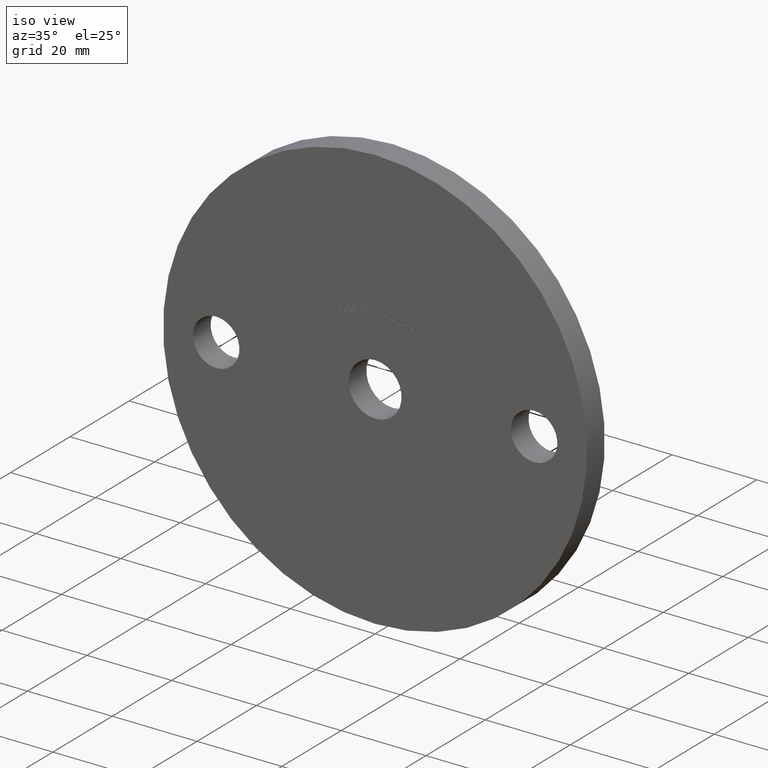
[diagram: clean part render]
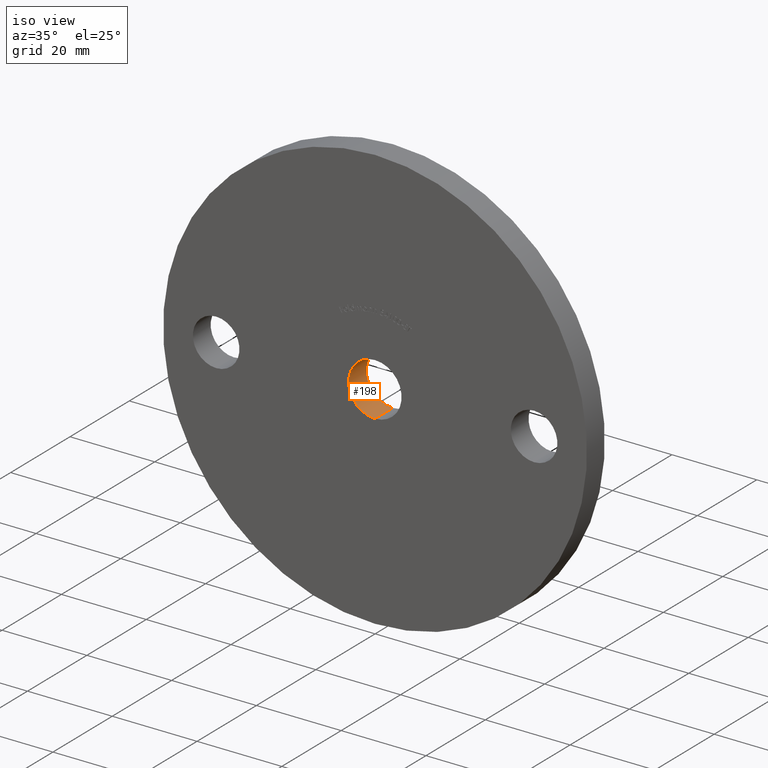
[diagram: same view with one face highlighted and labeled with its STEP entity id]
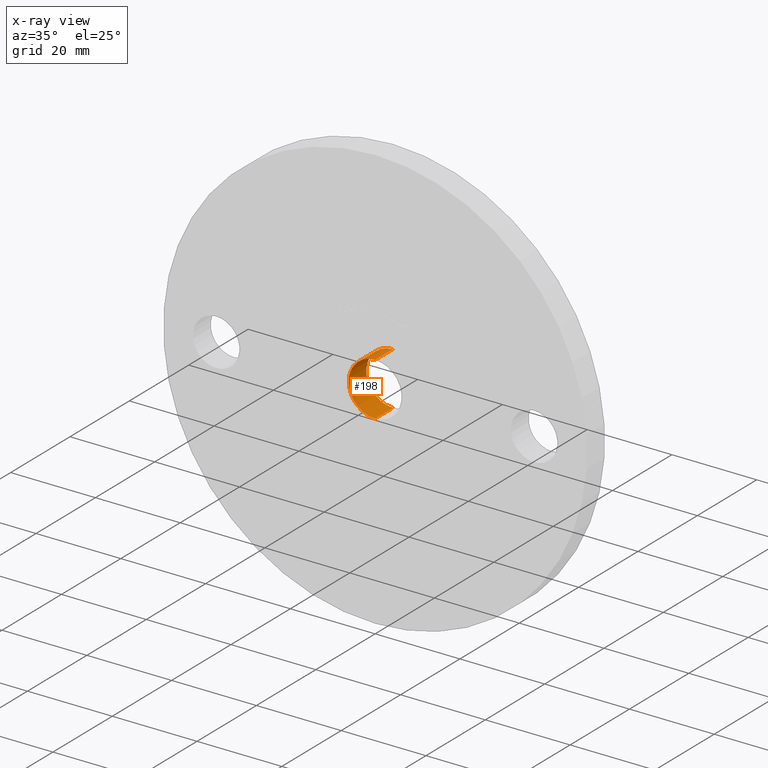
[diagram: x-ray of the same camera — body ghosted, the highlighted face saturated]
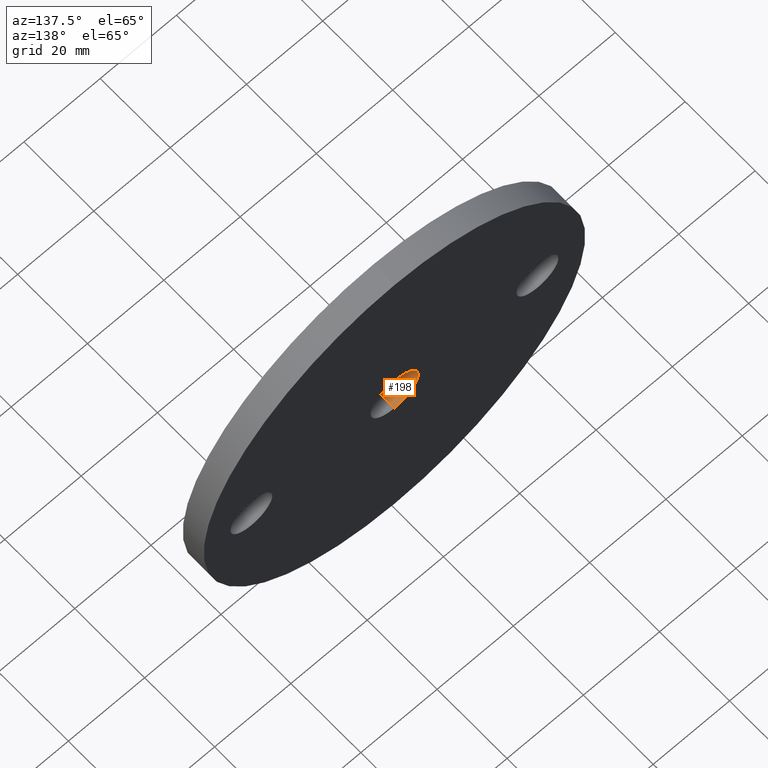
[diagram: same view with one face highlighted and labeled with its STEP entity id]
A machine part, iso view. The second image highlights one B-rep face of the part: STEP entity #198.
The next image is the same camera in x-ray: the body ghosted, the highlighted face saturated — about 0% of this face is hidden behind the body in this view.
A second angle (auxiliary view) of the same face is appended — the face is thin or edge-on in the first view.
In plain terms, the highlighted cylindrical surface (edge-blend (fillet) strip) has radius 6.25 mm, axis along (-0, 1, -0).
Its self-contained STEP definition (entity closure, byte-faithful):
#198 = ADVANCED_FACE ( 'NONE', ( #5155 ), #4210, .F. ) ;
#667 = AXIS2_PLACEMENT_3D ( 'NONE', #5362, #9909, #10661 ) ;
#752 = DIRECTION ( 'NONE',  ( 0.0000000000000000000, 0.0000000000000000000, 1.000000000000000000 ) ) ;
#915 = CARTESIAN_POINT ( 'NONE',  ( 7.654042494670957600E-016, 0.0000000000000000000, -6.250000000000000000 ) ) ;
#1032 = EDGE_LOOP ( 'NONE', ( #3854, #1188, #9122, #5023 ) ) ;
#1188 = ORIENTED_EDGE ( 'NONE', *, *, #9118, .T. ) ;
#2820 = CARTESIAN_POINT ( 'NONE',  ( 7.654042494670957600E-016, 0.0000000000000000000, -6.250000000000000000 ) ) ;
#3338 = VERTEX_POINT ( 'NONE', #10852 ) ;
#3520 = CIRCLE ( 'NONE', #667, 6.250000000000000000 ) ;
#3565 = EDGE_CURVE ( 'NONE', #7941, #3338, #8948, .T. ) ;
#3782 = VECTOR ( 'NONE', #9911, 1000.000000000000000 ) ;
#3854 = ORIENTED_EDGE ( 'NONE', *, *, #3565, .F. ) ;
#4210 = CYLINDRICAL_SURFACE ( 'NONE', #9867, 6.250000000000000000 ) ;
#4328 = LINE ( 'NONE', #7734, #5541 ) ;
#4468 = LINE ( 'NONE', #2820, #3782 ) ;
#5023 = ORIENTED_EDGE ( 'NONE', *, *, #10643, .F. ) ;
#5155 = FACE_OUTER_BOUND ( 'NONE', #1032, .T. ) ;
#5238 = VERTEX_POINT ( 'NONE', #7351 ) ;
#5292 = CARTESIAN_POINT ( 'NONE',  ( 0.0000000000000000000, 0.0000000000000000000, 0.0000000000000000000 ) ) ;
#5323 = DIRECTION ( 'NONE',  ( -0.0000000000000000000, 1.000000000000000000, -0.0000000000000000000 ) ) ;
#5362 = CARTESIAN_POINT ( 'NONE',  ( 0.0000000000000000000, 6.000000000000000000, 0.0000000000000000000 ) ) ;
#5525 = VERTEX_POINT ( 'NONE', #8674 ) ;
#5541 = VECTOR ( 'NONE', #5323, 1000.000000000000000 ) ;
#6117 = CARTESIAN_POINT ( 'NONE',  ( 0.0000000000000000000, 0.0000000000000000000, 0.0000000000000000000 ) ) ;
#6684 = EDGE_CURVE ( 'NONE', #5525, #5238, #3520, .T. ) ;
#6760 = AXIS2_PLACEMENT_3D ( 'NONE', #6117, #11492, #10780 ) ;
#7351 = CARTESIAN_POINT ( 'NONE',  ( 0.0000000000000000000, 6.000000000000000000, 6.250000000000000000 ) ) ;
#7734 = CARTESIAN_POINT ( 'NONE',  ( 0.0000000000000000000, 0.0000000000000000000, 6.250000000000000000 ) ) ;
#7941 = VERTEX_POINT ( 'NONE', #915 ) ;
#8674 = CARTESIAN_POINT ( 'NONE',  ( 7.654042494670957600E-016, 6.000000000000000000, -6.250000000000000000 ) ) ;
#8948 = CIRCLE ( 'NONE', #6760, 6.250000000000000000 ) ;
#9118 = EDGE_CURVE ( 'NONE', #7941, #5525, #4468, .T. ) ;
#9122 = ORIENTED_EDGE ( 'NONE', *, *, #6684, .T. ) ;
#9867 = AXIS2_PLACEMENT_3D ( 'NONE', #5292, #11408, #752 ) ;
#9909 = DIRECTION ( 'NONE',  ( 0.0000000000000000000, 1.000000000000000000, 0.0000000000000000000 ) ) ;
#9911 = DIRECTION ( 'NONE',  ( -0.0000000000000000000, 1.000000000000000000, -0.0000000000000000000 ) ) ;
#10643 = EDGE_CURVE ( 'NONE', #3338, #5238, #4328, .T. ) ;
#10661 = DIRECTION ( 'NONE',  ( 0.0000000000000000000, 0.0000000000000000000, 1.000000000000000000 ) ) ;
#10780 = DIRECTION ( 'NONE',  ( 0.0000000000000000000, 0.0000000000000000000, 1.000000000000000000 ) ) ;
#10852 = CARTESIAN_POINT ( 'NONE',  ( 0.0000000000000000000, 0.0000000000000000000, 6.250000000000000000 ) ) ;
#11408 = DIRECTION ( 'NONE',  ( -0.0000000000000000000, 1.000000000000000000, -0.0000000000000000000 ) ) ;
#11492 = DIRECTION ( 'NONE',  ( 0.0000000000000000000, 1.000000000000000000, 0.0000000000000000000 ) ) ;